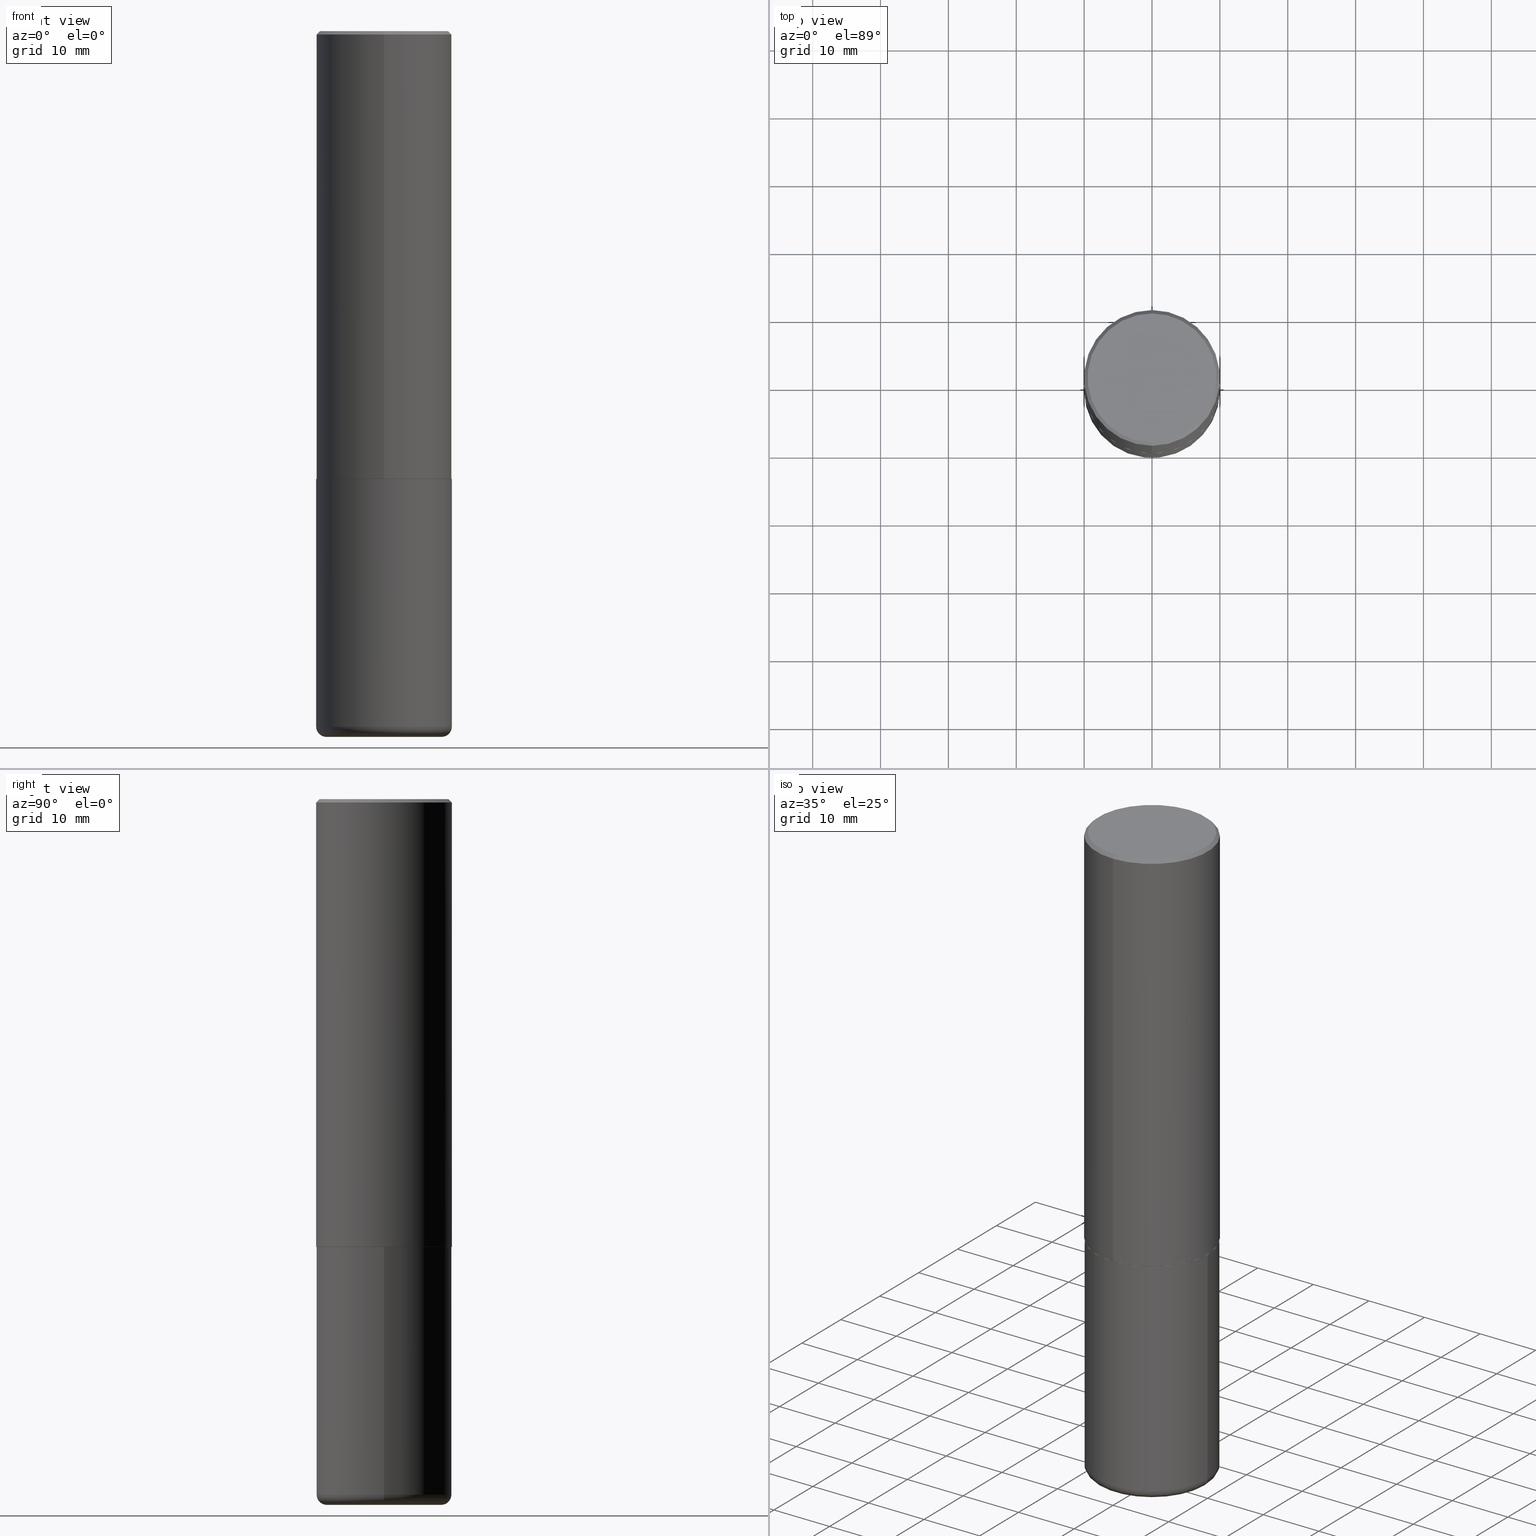
[diagram: canonical four-view strip — front | top / right | iso, engineering-drawing reading convention]
A machine part, canonical four-view strip (front | top / right | iso — engineering-drawing reading convention). The complete STEP part file that produces these views, byte-faithful:
ISO-10303-21;
HEADER;
FILE_DESCRIPTION (( 'STEP AP203' ),
    '1' );
FILE_NAME ('46229.STEP',
    '2024-03-04T20:17:43',
    ( '' ),
    ( '' ),
    'SwSTEP 2.0',
    'SolidWorks 2023',
    '' );
FILE_SCHEMA (( 'CONFIG_CONTROL_DESIGN' ));
ENDSEC;

DATA;
#1 = FACE_OUTER_BOUND ( 'NONE', #149, .T. ) ;
#2 = ORIENTED_EDGE ( 'NONE', *, *, #55, .T. ) ;
#3 = CARTESIAN_POINT ( 'NONE',  ( 6.354306145991459756E-29, -9.072265110850031044E-15, -2.598400000000000265 ) ) ;
#4 = DIRECTION ( 'NONE',  ( -6.982962677686266711E-15, -1.000000000000000000, 3.491481338843145583E-15 ) ) ;
#5 = EDGE_LOOP ( 'NONE', ( #394, #150 ) ) ;
#6 = DATE_AND_TIME ( #106, #119 ) ;
#7 = CC_DESIGN_APPROVAL ( #392, ( #238 ) ) ;
#8 = LINE ( 'NONE', #12, #186 ) ;
#9 = CARTESIAN_POINT ( 'NONE',  ( -2.700978061722650858E-15, -0.3937000000000000499, -0.01999999999999870978 ) ) ;
#10 = PERSON_AND_ORGANIZATION_ROLE ( 'creator' ) ;
#11 =( CONVERSION_BASED_UNIT ( 'INCH', #359 ) LENGTH_UNIT ( ) NAMED_UNIT ( #47 ) );
#12 = CARTESIAN_POINT ( 'NONE',  ( -0.3937000000000000499, 2.797406750687514786E-15, -1.936584745033356735E-29 ) ) ;
#13 = PERSON_AND_ORGANIZATION ( #389, #37 ) ;
#14 =( NAMED_UNIT ( * ) SI_UNIT ( $, .STERADIAN. ) SOLID_ANGLE_UNIT ( ) );
#15 = CARTESIAN_POINT ( 'NONE',  ( 6.351431425140834368E-29, -9.069388342870335822E-15, -2.597400000000000375 ) ) ;
#16 = FACE_OUTER_BOUND ( 'NONE', #224, .T. ) ;
#17 = AXIS2_PLACEMENT_3D ( 'NONE', #221, #189, #61 ) ;
#18 = CARTESIAN_POINT ( 'NONE',  ( 2.679362779428219524E-15, 0.3736999999999999211, -1.206590789053373821E-15 ) ) ;
#19 = DIRECTION ( 'NONE',  ( -2.445468806185136597E-29, 3.491481338843145583E-15, 1.000000000000000000 ) ) ;
#20 = PERSON_AND_ORGANIZATION_ROLE ( 'design_owner' ) ;
#21 = EDGE_CURVE ( 'NONE', #269, #358, #180, .T. ) ;
#22 = AXIS2_PLACEMENT_3D ( 'NONE', #113, #78, #208 ) ;
#23 =( GEOMETRIC_REPRESENTATION_CONTEXT ( 3 ) GLOBAL_UNCERTAINTY_ASSIGNED_CONTEXT ( ( #124 ) ) GLOBAL_UNIT_ASSIGNED_CONTEXT ( ( #11, #363, #14 ) ) REPRESENTATION_CONTEXT ( 'NONE', 'WORKASPACE' ) );
#24 = APPLICATION_CONTEXT ( 'configuration controlled 3d designs of mechanical parts and assemblies' ) ;
#25 = DIRECTION ( 'NONE',  ( 0.000000000000000000, 0.000000000000000000, 1.000000000000000000 ) ) ;
#26 = ORIENTED_EDGE ( 'NONE', *, *, #374, .T. ) ;
#27 = DIRECTION ( 'NONE',  ( -6.982962677686265922E-15, -1.000000000000000000, 4.163344669033672479E-15 ) ) ;
#28 = ORIENTED_EDGE ( 'NONE', *, *, #229, .F. ) ;
#29 = DIRECTION ( 'NONE',  ( 6.982962677686265922E-15, 1.000000000000000000, -3.491718003723082520E-15 ) ) ;
#30 = AXIS2_PLACEMENT_3D ( 'NONE', #143, #371, #117 ) ;
#31 = CONICAL_SURFACE ( 'NONE', #219, 0.3936999999999999389, 0.7853981633974452814 ) ;
#32 = CARTESIAN_POINT ( 'NONE',  ( 9.866732992315171563E-29, -1.408707975783044020E-14, -4.034700000000000841 ) ) ;
#33 = EDGE_CURVE ( 'NONE', #104, #269, #365, .T. ) ;
#34 = FACE_OUTER_BOUND ( 'NONE', #46, .T. ) ;
#35 = CARTESIAN_POINT ( 'NONE',  ( -2.742209443527332910E-15, -0.3927000000000090973, -2.598399999999998489 ) ) ;
#36 = AXIS2_PLACEMENT_3D ( 'NONE', #171, #111, #256 ) ;
#37 = ORGANIZATION ( 'UNSPECIFIED', 'UNSPECIFIED', '' ) ;
#38 = ORIENTED_EDGE ( 'NONE', *, *, #229, .T. ) ;
#39 = VERTEX_POINT ( 'NONE', #9 ) ;
#40 = COORDINATED_UNIVERSAL_TIME_OFFSET ( 5, 0, .BEHIND. ) ;
#41 = EDGE_CURVE ( 'NONE', #215, #200, #395, .T. ) ;
#42 = EDGE_LOOP ( 'NONE', ( #68, #297 ) ) ;
#43 = CALENDAR_DATE ( 2024, 4, 3 ) ;
#44 = DIRECTION ( 'NONE',  ( -2.445468806185136597E-29, 3.491481338843145583E-15, 1.000000000000000000 ) ) ;
#45 = AXIS2_PLACEMENT_3D ( 'NONE', #15, #398, #27 ) ;
#46 = EDGE_LOOP ( 'NONE', ( #89, #232 ) ) ;
#47 = DIMENSIONAL_EXPONENTS ( 1.000000000000000000, 0.000000000000000000, 0.000000000000000000, 0.000000000000000000, 0.000000000000000000, 0.000000000000000000, 0.000000000000000000 ) ;
#48 = EDGE_CURVE ( 'NONE', #104, #132, #177, .T. ) ;
#49 = DIRECTION ( 'NONE',  ( 2.445303543982764697E-29, -3.491718003723082520E-15, -1.000000000000000000 ) ) ;
#50 = CARTESIAN_POINT ( 'NONE',  ( 0.3937000000000001054, -1.683627216403552499E-14, -4.034700000000000841 ) ) ;
#51 = CARTESIAN_POINT ( 'NONE',  ( -2.402858672686829468E-45, 3.431109773045782776E-31, 9.826422893794184205E-17 ) ) ;
#52 = VECTOR ( 'NONE', #313, 39.37007874015748143 ) ;
#53 = CARTESIAN_POINT ( 'NONE',  ( 4.890607087965551148E-31, -6.983436007446194572E-17, -0.02000000000000008715 ) ) ;
#54 = PERSON_AND_ORGANIZATION ( #389, #37 ) ;
#55 = EDGE_CURVE ( 'NONE', #39, #358, #209, .T. ) ;
#56 = AXIS2_PLACEMENT_3D ( 'NONE', #290, #265, #210 ) ;
#57 = ORIENTED_EDGE ( 'NONE', *, *, #281, .T. ) ;
#58 = CARTESIAN_POINT ( 'NONE',  ( 1.001297202692504327E-28, -1.429587034189326465E-14, -4.094500000000000917 ) ) ;
#59 = AXIS2_PLACEMENT_3D ( 'NONE', #51, #179, #306 ) ;
#60 = APPROVAL_PERSON_ORGANIZATION ( #54, #392, #82 ) ;
#61 = DIRECTION ( 'NONE',  ( 1.000000000000000000, -6.982962677686266711E-15, 0.000000000000000000 ) ) ;
#62 = CARTESIAN_POINT ( 'NONE',  ( 2.609533152651356620E-15, 0.3736999999999999211, -1.255722903522344693E-15 ) ) ;
#63 = EDGE_CURVE ( 'NONE', #358, #39, #142, .T. ) ;
#64 = LINE ( 'NONE', #190, #110 ) ;
#65 = ORIENTED_EDGE ( 'NONE', *, *, #369, .T. ) ;
#66 = FACE_OUTER_BOUND ( 'NONE', #71, .T. ) ;
#67 = CIRCLE ( 'NONE', #192, 0.3926999999999999935 ) ;
#68 = ORIENTED_EDGE ( 'NONE', *, *, #125, .F. ) ;
#69 = DATE_AND_TIME ( #291, #225 ) ;
#70 = ADVANCED_FACE ( 'NONE', ( #293 ), #327, .T. ) ;
#71 = EDGE_LOOP ( 'NONE', ( #403, #146, #307, #301 ) ) ;
#72 = APPROVAL_DATE_TIME ( #391, #94 ) ;
#73 = ORIENTED_EDGE ( 'NONE', *, *, #48, .T. ) ;
#74 = PERSON_AND_ORGANIZATION ( #389, #37 ) ;
#75 = ORIENTED_EDGE ( 'NONE', *, *, #344, .F. ) ;
#76 = CC_DESIGN_SECURITY_CLASSIFICATION ( #84, ( #182 ) ) ;
#77 = CARTESIAN_POINT ( 'NONE',  ( 2.790301323329976493E-15, 0.3926999999999909452, -2.598400000000002041 ) ) ;
#78 = DIRECTION ( 'NONE',  ( -2.445303543982764697E-29, 3.491718003723082520E-15, 1.000000000000000000 ) ) ;
#79 = PERSON_AND_ORGANIZATION ( #389, #37 ) ;
#80 = CARTESIAN_POINT ( 'NONE',  ( 4.890607087965551148E-31, -6.983436007446194572E-17, -0.02000000000000008715 ) ) ;
#81 = AXIS2_PLACEMENT_3D ( 'NONE', #345, #131, #155 ) ;
#82 = APPROVAL_ROLE ( '' ) ;
#83 = ADVANCED_FACE ( 'NONE', ( #170 ), #400, .T. ) ;
#84 = SECURITY_CLASSIFICATION ( '', '', #233 ) ;
#85 = VERTEX_POINT ( 'NONE', #373 ) ;
#86 = PRODUCT_RELATED_PRODUCT_CATEGORY ( 'detail', '', ( #334 ) ) ;
#87 = ADVANCED_FACE ( 'NONE', ( #330 ), #352, .T. ) ;
#88 = APPROVAL ( #328, 'UNSPECIFIED' ) ;
#89 = ORIENTED_EDGE ( 'NONE', *, *, #115, .F. ) ;
#90 = COORDINATED_UNIVERSAL_TIME_OFFSET ( 5, 0, .BEHIND. ) ;
#91 = ADVANCED_FACE ( 'NONE', ( #16 ), #268, .T. ) ;
#92 = CARTESIAN_POINT ( 'NONE',  ( 6.353876728684816076E-29, -9.072880060874059472E-15, -2.598400000000000265 ) ) ;
#93 = DIRECTION ( 'NONE',  ( 1.000000000000000000, -6.982962677686266711E-15, 0.000000000000000000 ) ) ;
#94 = APPROVAL ( #261, 'UNSPECIFIED' ) ;
#95 = ORIENTED_EDGE ( 'NONE', *, *, #214, .T. ) ;
#96 = ORIENTED_EDGE ( 'NONE', *, *, #405, .F. ) ;
#97 = PERSON_AND_ORGANIZATION ( #389, #37 ) ;
#98 = LINE ( 'NONE', #196, #273 ) ;
#99 = AXIS2_PLACEMENT_3D ( 'NONE', #272, #370, #324 ) ;
#100 = ORIENTED_EDGE ( 'NONE', *, *, #281, .F. ) ;
#101 = COORDINATED_UNIVERSAL_TIME_OFFSET ( 5, 0, .BEHIND. ) ;
#102 = CARTESIAN_POINT ( 'NONE',  ( 6.354306145991459756E-29, -9.072265110850031044E-15, -2.598400000000000265 ) ) ;
#103 = PLANE ( 'NONE',  #277 ) ;
#104 = VERTEX_POINT ( 'NONE', #333 ) ;
#105 = DIRECTION ( 'NONE',  ( -2.445468806185136877E-29, 3.491481338843145188E-15, 1.000000000000000000 ) ) ;
#106 = CALENDAR_DATE ( 2024, 4, 3 ) ;
#107 = FACE_OUTER_BOUND ( 'NONE', #413, .T. ) ;
#108 = EDGE_CURVE ( 'NONE', #222, #227, #338, .T. ) ;
#109 = ORIENTED_EDGE ( 'NONE', *, *, #41, .T. ) ;
#110 = VECTOR ( 'NONE', #251, 39.37007874015748143 ) ;
#111 = DIRECTION ( 'NONE',  ( -2.445303543982764697E-29, 3.491718003723082520E-15, 1.000000000000000000 ) ) ;
#112 = CC_DESIGN_DATE_AND_TIME_ASSIGNMENT ( #228, #201, ( #84 ) ) ;
#113 = CARTESIAN_POINT ( 'NONE',  ( 0.000000000000000000, 0.000000000000000000, 0.000000000000000000 ) ) ;
#114 = CARTESIAN_POINT ( 'NONE',  ( 0.000000000000000000, 0.000000000000000000, 0.000000000000000000 ) ) ;
#115 = EDGE_CURVE ( 'NONE', #132, #104, #67, .T. ) ;
#116 = ORIENTED_EDGE ( 'NONE', *, *, #374, .F. ) ;
#117 = DIRECTION ( 'NONE',  ( -6.982962677686265133E-15, -1.000000000000000000, 3.491718003723082520E-15 ) ) ;
#118 = CIRCLE ( 'NONE', #404, 0.05980000000000013777 ) ;
#119 = LOCAL_TIME ( 15, 17, 43.00000000000000000, #101 ) ;
#120 = EDGE_CURVE ( 'NONE', #285, #215, #248, .T. ) ;
#121 = AXIS2_PLACEMENT_3D ( 'NONE', #336, #399, #362 ) ;
#122 = ORIENTED_EDGE ( 'NONE', *, *, #369, .F. ) ;
#123 = CIRCLE ( 'NONE', #213, 0.3339000000000000301 ) ;
#124 = UNCERTAINTY_MEASURE_WITH_UNIT (LENGTH_MEASURE( 1.000000000000000082E-05 ), #11, 'distance_accuracy_value', 'NONE');
#125 = EDGE_CURVE ( 'NONE', #85, #285, #288, .T. ) ;
#126 = CARTESIAN_POINT ( 'NONE',  ( 9.866732992315171563E-29, -1.408707975783044020E-14, -4.034700000000000841 ) ) ;
#127 = ORIENTED_EDGE ( 'NONE', *, *, #408, .T. ) ;
#128 = DIRECTION ( 'NONE',  ( -6.982962677686265922E-15, -1.000000000000000000, 4.163344669033672479E-15 ) ) ;
#129 = ORIENTED_EDGE ( 'NONE', *, *, #108, .F. ) ;
#130 = COORDINATED_UNIVERSAL_TIME_OFFSET ( 5, 0, .BEHIND. ) ;
#131 = DIRECTION ( 'NONE',  ( 2.438088387897960049E-29, -3.491481338843145188E-15, -1.000000000000000000 ) ) ;
#132 = VERTEX_POINT ( 'NONE', #35 ) ;
#133 = CALENDAR_DATE ( 2024, 4, 3 ) ;
#134 = LOCAL_TIME ( 15, 17, 43.00000000000000000, #130 ) ;
#135 = ORIENTED_EDGE ( 'NONE', *, *, #144, .T. ) ;
#136 = DATE_AND_TIME ( #138, #335 ) ;
#137 = DIRECTION ( 'NONE',  ( 1.000000000000000000, -6.982962677686267499E-15, 0.000000000000000000 ) ) ;
#138 = CALENDAR_DATE ( 2024, 4, 3 ) ;
#139 = CARTESIAN_POINT ( 'NONE',  ( -0.3937000000000001054, -1.128967300714292462E-14, -4.034700000000000841 ) ) ;
#140 = DIRECTION ( 'NONE',  ( -6.982962677686265922E-15, -1.000000000000000000, 3.491137977679280212E-15 ) ) ;
#141 = CYLINDRICAL_SURFACE ( 'NONE', #218, 0.3937000000000000499 ) ;
#142 = CIRCLE ( 'NONE', #411, 0.3936999999999999389 ) ;
#143 = CARTESIAN_POINT ( 'NONE',  ( 0.000000000000000000, 0.000000000000000000, 0.000000000000000000 ) ) ;
#144 = EDGE_CURVE ( 'NONE', #376, #39, #321, .T. ) ;
#145 = APPLICATION_PROTOCOL_DEFINITION ( 'international standard', 'config_control_design', 1994, #415 ) ;
#146 = ORIENTED_EDGE ( 'NONE', *, *, #311, .T. ) ;
#147 = ADVANCED_BREP_SHAPE_REPRESENTATION ( '46229', ( #157, #295, #246 ), #23 ) ;
#148 = LOCAL_TIME ( 15, 17, 43.00000000000000000, #40 ) ;
#149 = EDGE_LOOP ( 'NONE', ( #163, #127 ) ) ;
#150 = ORIENTED_EDGE ( 'NONE', *, *, #360, .T. ) ;
#151 = DIRECTION ( 'NONE',  ( -6.982962677686265922E-15, -1.000000000000000000, 3.491718003723082520E-15 ) ) ;
#152 = ADVANCED_FACE ( 'NONE', ( #1 ), #156, .F. ) ;
#153 = DIRECTION ( 'NONE',  ( -2.445468806185136597E-29, 3.491481338843145583E-15, 1.000000000000000000 ) ) ;
#154 = ADVANCED_FACE ( 'NONE', ( #254 ), #245, .T. ) ;
#155 = DIRECTION ( 'NONE',  ( -1.000000000000000000, 6.982962677686265922E-15, -4.876176775795935793E-29 ) ) ;
#156 = PLANE ( 'NONE',  #81 ) ;
#157 = MANIFOLD_SOLID_BREP ( 'Body-Move/Copy2[1]', #383 ) ;
#158 = APPROVAL_PERSON_ORGANIZATION ( #161, #94, #173 ) ;
#159 = DIRECTION ( 'NONE',  ( -2.445468806185136597E-29, 3.491481338843145583E-15, 1.000000000000000000 ) ) ;
#160 = EDGE_LOOP ( 'NONE', ( #282, #239, #100, #255 ) ) ;
#161 = PERSON_AND_ORGANIZATION ( #389, #37 ) ;
#162 = FACE_OUTER_BOUND ( 'NONE', #160, .T. ) ;
#163 = ORIENTED_EDGE ( 'NONE', *, *, #405, .T. ) ;
#164 = CARTESIAN_POINT ( 'NONE',  ( 2.749192406205082822E-15, 0.3936999999999998834, -0.02000000000000146105 ) ) ;
#165 = FACE_OUTER_BOUND ( 'NONE', #275, .T. ) ;
#166 = VERTEX_POINT ( 'NONE', #226 ) ;
#167 = DIRECTION ( 'NONE',  ( 1.000000000000000000, -6.982962677686267499E-15, 0.000000000000000000 ) ) ;
#168 = CIRCLE ( 'NONE', #45, 0.3937000000000002720 ) ;
#169 = AXIS2_PLACEMENT_3D ( 'NONE', #314, #185, #351 ) ;
#170 = FACE_OUTER_BOUND ( 'NONE', #253, .T. ) ;
#171 = CARTESIAN_POINT ( 'NONE',  ( -2.402858672686829468E-45, 3.431109773045782776E-31, 9.826422893794184205E-17 ) ) ;
#172 = CC_DESIGN_PERSON_AND_ORGANIZATION_ASSIGNMENT ( #97, #418, ( #182 ) ) ;
#173 = APPROVAL_ROLE ( '' ) ;
#174 = DIRECTION ( 'NONE',  ( 6.982962677686265922E-15, 1.000000000000000000, -3.491137977679280212E-15 ) ) ;
#175 = EDGE_CURVE ( 'NONE', #85, #200, #118, .T. ) ;
#176 = DIRECTION ( 'NONE',  ( 2.438088387897960049E-29, -3.491481338843145188E-15, -1.000000000000000000 ) ) ;
#177 = CIRCLE ( 'NONE', #99, 0.3926999999999999935 ) ;
#178 = AXIS2_PLACEMENT_3D ( 'NONE', #32, #153, #279 ) ;
#179 = DIRECTION ( 'NONE',  ( -2.445303543982764697E-29, 3.491718003723082520E-15, 1.000000000000000000 ) ) ;
#180 = LINE ( 'NONE', #241, #304 ) ;
#181 = VECTOR ( 'NONE', #397, 39.37007874015748143 ) ;
#182 = PRODUCT_DEFINITION_FORMATION_WITH_SPECIFIED_SOURCE ( 'ANY', '', #334, .NOT_KNOWN. ) ;
#183 = EDGE_CURVE ( 'NONE', #132, #376, #259, .T. ) ;
#184 = ORIENTED_EDGE ( 'NONE', *, *, #408, .F. ) ;
#185 = DIRECTION ( 'NONE',  ( -2.445303543982764697E-29, 3.491718003723082520E-15, 1.000000000000000000 ) ) ;
#186 = VECTOR ( 'NONE', #105, 39.37007874015748143 ) ;
#187 = AXIS2_PLACEMENT_3D ( 'NONE', #318, #347, #128 ) ;
#188 = DIRECTION ( 'NONE',  ( -2.445303543982764697E-29, 3.491718003723082520E-15, 1.000000000000000000 ) ) ;
#189 = DIRECTION ( 'NONE',  ( -2.445468806185136597E-29, 3.491481338843145583E-15, 1.000000000000000000 ) ) ;
#190 = CARTESIAN_POINT ( 'NONE',  ( 0.3937000000000000499, -2.749192406205083217E-15, 1.919750796630860172E-29 ) ) ;
#191 = ORIENTED_EDGE ( 'NONE', *, *, #63, .T. ) ;
#192 = AXIS2_PLACEMENT_3D ( 'NONE', #341, #276, #216 ) ;
#193 = CIRCLE ( 'NONE', #289, 0.3937000000000000499 ) ;
#194 = ORIENTED_EDGE ( 'NONE', *, *, #344, .T. ) ;
#195 = APPROVAL_ROLE ( '' ) ;
#196 = CARTESIAN_POINT ( 'NONE',  ( -2.700978061722650858E-15, -0.3937000000000000499, -0.01999999999999870978 ) ) ;
#197 = ORIENTED_EDGE ( 'NONE', *, *, #33, .F. ) ;
#198 = DIRECTION ( 'NONE',  ( 1.000000000000000000, -6.982962677686267499E-15, 0.000000000000000000 ) ) ;
#199 = ADVANCED_FACE ( 'NONE', ( #165 ), #141, .T. ) ;
#200 = VERTEX_POINT ( 'NONE', #50 ) ;
#201 = DATE_TIME_ROLE ( 'classification_date' ) ;
#202 = TOROIDAL_SURFACE ( 'NONE', #178, 0.3339000000000000301, 0.05980000000000013777 ) ;
#203 = DIRECTION ( 'NONE',  ( -2.445303543982764697E-29, 3.491718003723082520E-15, 1.000000000000000000 ) ) ;
#204 = DIRECTION ( 'NONE',  ( 4.937700262164532265E-15, 0.7071067811865429098, -0.7071067811865521247 ) ) ;
#205 = CARTESIAN_POINT ( 'NONE',  ( 5.334428186112175764E-29, -2.099581140811568308E-14, -4.094500000000000917 ) ) ;
#206 = ADVANCED_FACE ( 'NONE', ( #287 ), #103, .T. ) ;
#207 = CARTESIAN_POINT ( 'NONE',  ( 9.866732992315171563E-29, -1.408707975783044020E-14, -4.034700000000000841 ) ) ;
#208 = DIRECTION ( 'NONE',  ( -6.982962677686265133E-15, -1.000000000000000000, 3.491718003723082520E-15 ) ) ;
#209 = CIRCLE ( 'NONE', #121, 0.3936999999999999389 ) ;
#210 = DIRECTION ( 'NONE',  ( 1.000000000000000000, -6.982962677686265922E-15, 4.876176775795935793E-29 ) ) ;
#211 = EDGE_CURVE ( 'NONE', #200, #215, #326, .T. ) ;
#212 = AXIS2_PLACEMENT_3D ( 'NONE', #207, #19, #137 ) ;
#213 = AXIS2_PLACEMENT_3D ( 'NONE', #58, #379, #93 ) ;
#214 = EDGE_CURVE ( 'NONE', #215, #166, #8, .T. ) ;
#215 = VERTEX_POINT ( 'NONE', #139 ) ;
#216 = DIRECTION ( 'NONE',  ( -6.982962677686265133E-15, -1.000000000000000000, 4.173946514383900962E-15 ) ) ;
#217 = FACE_OUTER_BOUND ( 'NONE', #387, .T. ) ;
#218 = AXIS2_PLACEMENT_3D ( 'NONE', #368, #235, #299 ) ;
#219 = AXIS2_PLACEMENT_3D ( 'NONE', #329, #286, #234 ) ;
#220 = DIRECTION ( 'NONE',  ( -2.445303543982764416E-29, 3.491718003723082520E-15, 1.000000000000000000 ) ) ;
#221 = CARTESIAN_POINT ( 'NONE',  ( 1.001297202692504327E-28, -1.429587034189326465E-14, -4.094500000000000917 ) ) ;
#222 = VERTEX_POINT ( 'NONE', #18 ) ;
#223 = CARTESIAN_POINT ( 'NONE',  ( -2.749192406205083217E-15, -0.3937000000000001054, 1.374689378065777917E-15 ) ) ;
#224 = EDGE_LOOP ( 'NONE', ( #57, #343, #317, #319 ) ) ;
#225 = LOCAL_TIME ( 15, 17, 43.00000000000000000, #90 ) ;
#226 = CARTESIAN_POINT ( 'NONE',  ( -0.3937000000000000499, -8.782265683652721625E-15, -2.598400000000000265 ) ) ;
#227 = VERTEX_POINT ( 'NONE', #296 ) ;
#228 = DATE_AND_TIME ( #133, #134 ) ;
#229 = EDGE_CURVE ( 'NONE', #269, #376, #168, .T. ) ;
#230 = DIRECTION ( 'NONE',  ( -2.445468806185136597E-29, 3.491481338843145583E-15, 1.000000000000000000 ) ) ;
#231 = CARTESIAN_POINT ( 'NONE',  ( 9.866732992315171563E-29, -1.408707975783044020E-14, -4.034700000000000841 ) ) ;
#232 = ORIENTED_EDGE ( 'NONE', *, *, #48, .F. ) ;
#233 = SECURITY_CLASSIFICATION_LEVEL ( 'unclassified' ) ;
#234 = DIRECTION ( 'NONE',  ( 6.982962677686265922E-15, 1.000000000000000000, -3.491137977679280212E-15 ) ) ;
#235 = DIRECTION ( 'NONE',  ( -2.445468806185136597E-29, 3.491481338843145583E-15, 1.000000000000000000 ) ) ;
#236 = ORIENTED_EDGE ( 'NONE', *, *, #214, .F. ) ;
#237 = DIRECTION ( 'NONE',  ( -4.851104656540949287E-15, -0.7071067811865477948, -0.7071067811865472397 ) ) ;
#238 = PRODUCT_DEFINITION ( 'UNKNOWN', '', #182, #410 ) ;
#239 = ORIENTED_EDGE ( 'NONE', *, *, #33, .T. ) ;
#240 = DIRECTION ( 'NONE',  ( 1.000000000000000000, 0.000000000000000000, 0.000000000000000000 ) ) ;
#241 = CARTESIAN_POINT ( 'NONE',  ( 2.797406750687514786E-15, 0.3937000000000001054, -1.374689378065777917E-15 ) ) ;
#242 = CONICAL_SURFACE ( 'NONE', #169, 0.3926999999999999935, 0.7853981633976873100 ) ;
#243 = ORIENTED_EDGE ( 'NONE', *, *, #360, .F. ) ;
#244 = ADVANCED_FACE ( 'NONE', ( #162 ), #242, .T. ) ;
#245 = TOROIDAL_SURFACE ( 'NONE', #298, 0.3339000000000000301, 0.05980000000000013777 ) ;
#246 = AXIS2_PLACEMENT_3D ( 'NONE', #114, #25, #240 ) ;
#247 = ORIENTED_EDGE ( 'NONE', *, *, #211, .T. ) ;
#248 = CIRCLE ( 'NONE', #257, 0.05980000000000013777 ) ;
#249 = CC_DESIGN_APPROVAL ( #88, ( #84 ) ) ;
#250 = DIRECTION ( 'NONE',  ( 2.445303543982764416E-29, -3.491718003723082520E-15, -1.000000000000000000 ) ) ;
#251 = DIRECTION ( 'NONE',  ( -2.445468806185136877E-29, 3.491481338843145188E-15, 1.000000000000000000 ) ) ;
#252 = CC_DESIGN_PERSON_AND_ORGANIZATION_ASSIGNMENT ( #74, #354, ( #84 ) ) ;
#253 = EDGE_LOOP ( 'NONE', ( #247, #95, #96, #75 ) ) ;
#254 = FACE_OUTER_BOUND ( 'NONE', #350, .T. ) ;
#255 = ORIENTED_EDGE ( 'NONE', *, *, #183, .F. ) ;
#256 = DIRECTION ( 'NONE',  ( -6.982962677686265133E-15, -1.000000000000000000, 3.491718003723082125E-15 ) ) ;
#257 = AXIS2_PLACEMENT_3D ( 'NONE', #381, #416, #315 ) ;
#258 = CC_DESIGN_APPROVAL ( #94, ( #182 ) ) ;
#259 = LINE ( 'NONE', #396, #309 ) ;
#260 = VERTEX_POINT ( 'NONE', #377 ) ;
#261 = APPROVAL_STATUS ( 'not_yet_approved' ) ;
#262 = PERSON_AND_ORGANIZATION ( #389, #37 ) ;
#263 = DIRECTION ( 'NONE',  ( -4.937700262165728178E-15, -0.7071067811867141062, 0.7071067811863809283 ) ) ;
#264 = DIRECTION ( 'NONE',  ( 1.000000000000000000, -6.982962677686265922E-15, 4.883557194083112340E-29 ) ) ;
#265 = DIRECTION ( 'NONE',  ( -2.445468806185136597E-29, 3.491481338843145583E-15, 1.000000000000000000 ) ) ;
#266 = CC_DESIGN_PERSON_AND_ORGANIZATION_ASSIGNMENT ( #262, #10, ( #238 ) ) ;
#267 = CIRCLE ( 'NONE', #305, 0.3937000000000000499 ) ;
#268 = CYLINDRICAL_SURFACE ( 'NONE', #22, 0.3937000000000001054 ) ;
#269 = VERTEX_POINT ( 'NONE', #407 ) ;
#270 = APPROVAL_STATUS ( 'not_yet_approved' ) ;
#271 = ADVANCED_FACE ( 'NONE', ( #217 ), #310, .T. ) ;
#272 = CARTESIAN_POINT ( 'NONE',  ( 6.353876728684816076E-29, -9.072880060874059472E-15, -2.598400000000000265 ) ) ;
#273 = VECTOR ( 'NONE', #237, 39.37007874015748143 ) ;
#274 = ADVANCED_FACE ( 'NONE', ( #34 ), #414, .F. ) ;
#275 = EDGE_LOOP ( 'NONE', ( #236, #109, #194, #184 ) ) ;
#276 = DIRECTION ( 'NONE',  ( -2.445303543982764697E-29, 3.491718003723082520E-15, 1.000000000000000000 ) ) ;
#277 = AXIS2_PLACEMENT_3D ( 'NONE', #205, #176, #361 ) ;
#278 = ORIENTED_EDGE ( 'NONE', *, *, #211, .F. ) ;
#279 = DIRECTION ( 'NONE',  ( 1.000000000000000000, -6.982962677686265922E-15, 4.883557194083112340E-29 ) ) ;
#280 = CARTESIAN_POINT ( 'NONE',  ( -0.3339000000000000301, -1.160652057716660628E-14, -4.094500000000000917 ) ) ;
#281 = EDGE_CURVE ( 'NONE', #376, #269, #378, .T. ) ;
#282 = ORIENTED_EDGE ( 'NONE', *, *, #115, .T. ) ;
#283 = PERSON_AND_ORGANIZATION_ROLE ( 'creator' ) ;
#284 = CARTESIAN_POINT ( 'NONE',  ( 6.353876728684816076E-29, -9.072880060874059472E-15, -2.598400000000000265 ) ) ;
#285 = VERTEX_POINT ( 'NONE', #280 ) ;
#286 = DIRECTION ( 'NONE',  ( 2.445303543982764697E-29, -3.491718003723082520E-15, -1.000000000000000000 ) ) ;
#287 = FACE_OUTER_BOUND ( 'NONE', #42, .T. ) ;
#288 = CIRCLE ( 'NONE', #17, 0.3339000000000000301 ) ;
#289 = AXIS2_PLACEMENT_3D ( 'NONE', #102, #230, #198 ) ;
#290 = CARTESIAN_POINT ( 'NONE',  ( 0.000000000000000000, 0.000000000000000000, 0.000000000000000000 ) ) ;
#291 = CALENDAR_DATE ( 2024, 4, 3 ) ;
#292 = LINE ( 'NONE', #357, #406 ) ;
#293 = FACE_OUTER_BOUND ( 'NONE', #382, .T. ) ;
#294 = ADVANCED_FACE ( 'NONE', ( #66 ), #202, .T. ) ;
#295 = MANIFOLD_SOLID_BREP ( 'Body-Move/Copy2[2]', #316 ) ;
#296 = CARTESIAN_POINT ( 'NONE',  ( -2.632373081744935132E-15, -0.3736999999999999211, 1.403119246929257505E-15 ) ) ;
#297 = ORIENTED_EDGE ( 'NONE', *, *, #311, .F. ) ;
#298 = AXIS2_PLACEMENT_3D ( 'NONE', #126, #159, #264 ) ;
#299 = DIRECTION ( 'NONE',  ( 1.000000000000000000, -6.982962677686265922E-15, 4.876176775795935793E-29 ) ) ;
#300 = APPROVAL_PERSON_ORGANIZATION ( #13, #88, #195 ) ;
#301 = ORIENTED_EDGE ( 'NONE', *, *, #41, .F. ) ;
#302 = ADVANCED_FACE ( 'NONE', ( #308 ), #409, .F. ) ;
#303 = DIRECTION ( 'NONE',  ( -2.445303543982764697E-29, 3.491718003723082520E-15, 1.000000000000000000 ) ) ;
#304 = VECTOR ( 'NONE', #303, 39.37007874015748143 ) ;
#305 = AXIS2_PLACEMENT_3D ( 'NONE', #3, #367, #386 ) ;
#306 = DIRECTION ( 'NONE',  ( -6.982962677686265133E-15, -1.000000000000000000, 3.491718003723082125E-15 ) ) ;
#307 = ORIENTED_EDGE ( 'NONE', *, *, #175, .T. ) ;
#308 = FACE_OUTER_BOUND ( 'NONE', #5, .T. ) ;
#309 = VECTOR ( 'NONE', #263, 39.37007874015748143 ) ;
#310 = CONICAL_SURFACE ( 'NONE', #346, 0.3926999999999999935, 0.7853981633976873100 ) ;
#311 = EDGE_CURVE ( 'NONE', #285, #85, #123, .T. ) ;
#312 = CC_DESIGN_DATE_AND_TIME_ASSIGNMENT ( #6, #323, ( #238 ) ) ;
#313 = DIRECTION ( 'NONE',  ( -2.445303543982764697E-29, 3.491718003723082520E-15, 1.000000000000000000 ) ) ;
#314 = CARTESIAN_POINT ( 'NONE',  ( 6.353876728684816076E-29, -9.072880060874059472E-15, -2.598400000000000265 ) ) ;
#315 = DIRECTION ( 'NONE',  ( -1.000000000000000000, 7.105427357601017636E-15, 0.000000000000000000 ) ) ;
#316 = CLOSED_SHELL ( 'NONE', ( #244, #91, #87, #402, #70, #271, #274, #302 ) ) ;
#317 = ORIENTED_EDGE ( 'NONE', *, *, #55, .F. ) ;
#318 = CARTESIAN_POINT ( 'NONE',  ( 6.351431425140834368E-29, -9.069388342870335822E-15, -2.597400000000000375 ) ) ;
#319 = ORIENTED_EDGE ( 'NONE', *, *, #144, .F. ) ;
#320 = CARTESIAN_POINT ( 'NONE',  ( -2.749192406205021291E-15, -0.3937000000000093758, -2.597399999999999043 ) ) ;
#321 = LINE ( 'NONE', #223, #52 ) ;
#322 = ORIENTED_EDGE ( 'NONE', *, *, #63, .F. ) ;
#323 = DATE_TIME_ROLE ( 'creation_date' ) ;
#324 = DIRECTION ( 'NONE',  ( -6.982962677686265133E-15, -1.000000000000000000, 4.173946514383900962E-15 ) ) ;
#325 = PERSON_AND_ORGANIZATION ( #389, #37 ) ;
#326 = CIRCLE ( 'NONE', #372, 0.3937000000000000499 ) ;
#327 = CYLINDRICAL_SURFACE ( 'NONE', #30, 0.3937000000000001054 ) ;
#328 = APPROVAL_STATUS ( 'not_yet_approved' ) ;
#329 = CARTESIAN_POINT ( 'NONE',  ( 4.890607087965551148E-31, -6.983436007446194572E-17, -0.02000000000000008715 ) ) ;
#330 = FACE_OUTER_BOUND ( 'NONE', #353, .T. ) ;
#331 = APPROVAL_DATE_TIME ( #69, #392 ) ;
#332 = DIRECTION ( 'NONE',  ( 1.000000000000000000, -6.982962677686261189E-15, 0.000000000000000000 ) ) ;
#333 = CARTESIAN_POINT ( 'NONE',  ( 2.793854037008778575E-15, 0.3926999999999909452, -2.598400000000002041 ) ) ;
#334 = PRODUCT ( '46229', '46229', '', ( #337 ) ) ;
#335 = LOCAL_TIME ( 15, 17, 43.00000000000000000, #385 ) ;
#336 = CARTESIAN_POINT ( 'NONE',  ( 4.890607087965551148E-31, -6.983436007446194572E-17, -0.02000000000000008715 ) ) ;
#337 = MECHANICAL_CONTEXT ( 'NONE', #24, 'mechanical' ) ;
#338 = CIRCLE ( 'NONE', #59, 0.3736999999999999211 ) ;
#339 = CC_DESIGN_PERSON_AND_ORGANIZATION_ASSIGNMENT ( #79, #20, ( #334 ) ) ;
#340 = APPLICATION_PROTOCOL_DEFINITION ( 'international standard', 'config_control_design', 1994, #24 ) ;
#341 = CARTESIAN_POINT ( 'NONE',  ( 6.353876728684816076E-29, -9.072880060874059472E-15, -2.598400000000000265 ) ) ;
#342 = PRODUCT_DEFINITION_SHAPE ( 'NONE', 'NONE',  #238 ) ;
#343 = ORIENTED_EDGE ( 'NONE', *, *, #21, .T. ) ;
#344 = EDGE_CURVE ( 'NONE', #200, #260, #64, .T. ) ;
#345 = CARTESIAN_POINT ( 'NONE',  ( 6.354306145991459756E-29, -9.072265110850031044E-15, -2.598400000000000265 ) ) ;
#346 = AXIS2_PLACEMENT_3D ( 'NONE', #284, #188, #349 ) ;
#347 = DIRECTION ( 'NONE',  ( -2.445303543982764697E-29, 3.491718003723082520E-15, 1.000000000000000000 ) ) ;
#348 = CC_DESIGN_PERSON_AND_ORGANIZATION_ASSIGNMENT ( #325, #283, ( #182 ) ) ;
#349 = DIRECTION ( 'NONE',  ( -6.982962677686265133E-15, -1.000000000000000000, 4.173946514383900962E-15 ) ) ;
#350 = EDGE_LOOP ( 'NONE', ( #417, #390, #278, #380 ) ) ;
#351 = DIRECTION ( 'NONE',  ( -6.982962677686265133E-15, -1.000000000000000000, 4.173946514383900962E-15 ) ) ;
#352 = CONICAL_SURFACE ( 'NONE', #375, 0.3936999999999999389, 0.7853981633974452814 ) ;
#353 = EDGE_LOOP ( 'NONE', ( #243, #65, #2, #116 ) ) ;
#354 = PERSON_AND_ORGANIZATION_ROLE ( 'classification_officer' ) ;
#355 = ORIENTED_EDGE ( 'NONE', *, *, #183, .T. ) ;
#356 = SHAPE_DEFINITION_REPRESENTATION ( #342, #147 ) ;
#357 = CARTESIAN_POINT ( 'NONE',  ( 2.749192406205082822E-15, 0.3936999999999998834, -0.02000000000000146105 ) ) ;
#358 = VERTEX_POINT ( 'NONE', #164 ) ;
#359 = LENGTH_MEASURE_WITH_UNIT ( LENGTH_MEASURE( 0.02539999999999999897 ), #388 );
#360 = EDGE_CURVE ( 'NONE', #227, #222, #364, .T. ) ;
#361 = DIRECTION ( 'NONE',  ( -1.000000000000000000, 6.982962677686265922E-15, -4.876176775795935793E-29 ) ) ;
#362 = DIRECTION ( 'NONE',  ( -6.982962677686265922E-15, -1.000000000000000000, 3.491137977679280212E-15 ) ) ;
#363 =( NAMED_UNIT ( * ) PLANE_ANGLE_UNIT ( ) SI_UNIT ( $, .RADIAN. ) );
#364 = CIRCLE ( 'NONE', #36, 0.3736999999999999211 ) ;
#365 = LINE ( 'NONE', #77, #181 ) ;
#366 = APPROVAL_DATE_TIME ( #136, #88 ) ;
#367 = DIRECTION ( 'NONE',  ( -2.445468806185136597E-29, 3.491481338843145583E-15, 1.000000000000000000 ) ) ;
#368 = CARTESIAN_POINT ( 'NONE',  ( 0.000000000000000000, 0.000000000000000000, 0.000000000000000000 ) ) ;
#369 = EDGE_CURVE ( 'NONE', #227, #39, #98, .T. ) ;
#370 = DIRECTION ( 'NONE',  ( -2.445303543982764697E-29, 3.491718003723082520E-15, 1.000000000000000000 ) ) ;
#371 = DIRECTION ( 'NONE',  ( -2.445303543982764697E-29, 3.491718003723082520E-15, 1.000000000000000000 ) ) ;
#372 = AXIS2_PLACEMENT_3D ( 'NONE', #231, #44, #167 ) ;
#373 = CARTESIAN_POINT ( 'NONE',  ( 0.3339000000000000301, -1.662748157997270843E-14, -4.094500000000000917 ) ) ;
#374 = EDGE_CURVE ( 'NONE', #222, #358, #292, .T. ) ;
#375 = AXIS2_PLACEMENT_3D ( 'NONE', #53, #49, #174 ) ;
#376 = VERTEX_POINT ( 'NONE', #320 ) ;
#377 = CARTESIAN_POINT ( 'NONE',  ( 0.3937000000000000499, -1.182145751705511584E-14, -2.598400000000000265 ) ) ;
#378 = CIRCLE ( 'NONE', #187, 0.3937000000000002720 ) ;
#379 = DIRECTION ( 'NONE',  ( -2.445468806185136597E-29, 3.491481338843145583E-15, 1.000000000000000000 ) ) ;
#380 = ORIENTED_EDGE ( 'NONE', *, *, #175, .F. ) ;
#381 = CARTESIAN_POINT ( 'NONE',  ( -0.3339000000000000301, -1.171457756312746665E-14, -4.034700000000000841 ) ) ;
#382 = EDGE_LOOP ( 'NONE', ( #384, #38, #135, #322 ) ) ;
#383 = CLOSED_SHELL ( 'NONE', ( #83, #154, #152, #199, #294, #206 ) ) ;
#384 = ORIENTED_EDGE ( 'NONE', *, *, #21, .F. ) ;
#385 = COORDINATED_UNIVERSAL_TIME_OFFSET ( 5, 0, .BEHIND. ) ;
#386 = DIRECTION ( 'NONE',  ( 1.000000000000000000, -6.982962677686267499E-15, 0.000000000000000000 ) ) ;
#387 = EDGE_LOOP ( 'NONE', ( #197, #73, #355, #28 ) ) ;
#388 =( LENGTH_UNIT ( ) NAMED_UNIT ( * ) SI_UNIT ( $, .METRE. ) );
#389 = PERSON ( 'UNSPECIFIED', 'UNSPECIFIED', 'UNSPECIFIED', ('UNSPECIFIED'), ('UNSPECIFIED'), ('UNSPECIFIED') ) ;
#390 = ORIENTED_EDGE ( 'NONE', *, *, #120, .T. ) ;
#391 = DATE_AND_TIME ( #43, #148 ) ;
#392 = APPROVAL ( #270, 'UNSPECIFIED' ) ;
#393 = CARTESIAN_POINT ( 'NONE',  ( 0.3339000000000000301, -1.641869099590988556E-14, -4.034700000000000841 ) ) ;
#394 = ORIENTED_EDGE ( 'NONE', *, *, #108, .T. ) ;
#395 = CIRCLE ( 'NONE', #212, 0.3937000000000000499 ) ;
#396 = CARTESIAN_POINT ( 'NONE',  ( -2.742209443527332910E-15, -0.3927000000000090973, -2.598399999999998489 ) ) ;
#397 = DIRECTION ( 'NONE',  ( 5.024295867789263036E-15, 0.7071067811867189912, 0.7071067811863760433 ) ) ;
#398 = DIRECTION ( 'NONE',  ( -2.445303543982764697E-29, 3.491718003723082520E-15, 1.000000000000000000 ) ) ;
#399 = DIRECTION ( 'NONE',  ( -2.445303543982764697E-29, 3.491718003723082520E-15, 1.000000000000000000 ) ) ;
#400 = CYLINDRICAL_SURFACE ( 'NONE', #56, 0.3937000000000000499 ) ;
#401 = AXIS2_PLACEMENT_3D ( 'NONE', #92, #220, #151 ) ;
#402 = ADVANCED_FACE ( 'NONE', ( #107 ), #31, .T. ) ;
#403 = ORIENTED_EDGE ( 'NONE', *, *, #120, .F. ) ;
#404 = AXIS2_PLACEMENT_3D ( 'NONE', #393, #4, #332 ) ;
#405 = EDGE_CURVE ( 'NONE', #260, #166, #267, .T. ) ;
#406 = VECTOR ( 'NONE', #204, 39.37007874015748143 ) ;
#407 = CARTESIAN_POINT ( 'NONE',  ( 2.797406750687547919E-15, 0.3936999999999912792, -2.597400000000002152 ) ) ;
#408 = EDGE_CURVE ( 'NONE', #166, #260, #193, .T. ) ;
#409 = PLANE ( 'NONE',  #412 ) ;
#410 = DESIGN_CONTEXT ( 'detailed design', #415, 'design' ) ;
#411 = AXIS2_PLACEMENT_3D ( 'NONE', #80, #203, #140 ) ;
#412 = AXIS2_PLACEMENT_3D ( 'NONE', #62, #250, #29 ) ;
#413 = EDGE_LOOP ( 'NONE', ( #122, #129, #26, #191 ) ) ;
#414 = PLANE ( 'NONE',  #401 ) ;
#415 = APPLICATION_CONTEXT ( 'configuration controlled 3d designs of mechanical parts and assemblies' ) ;
#416 = DIRECTION ( 'NONE',  ( 7.105427357601001859E-15, 1.000000000000000000, -3.491481338843145583E-15 ) ) ;
#417 = ORIENTED_EDGE ( 'NONE', *, *, #125, .T. ) ;
#418 = PERSON_AND_ORGANIZATION_ROLE ( 'design_supplier' ) ;
ENDSEC;
END-ISO-10303-21;
